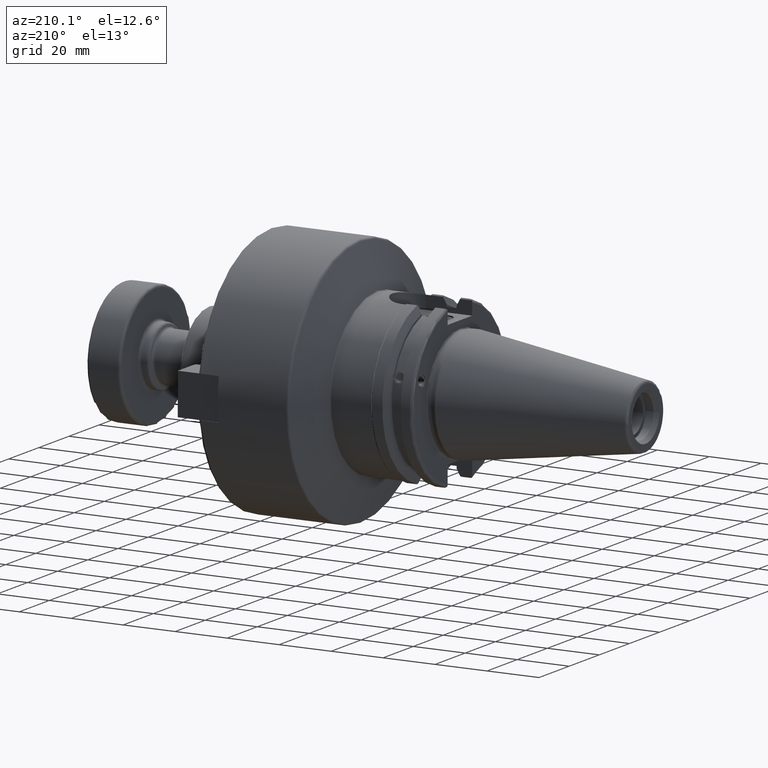
[diagram: clean part render]
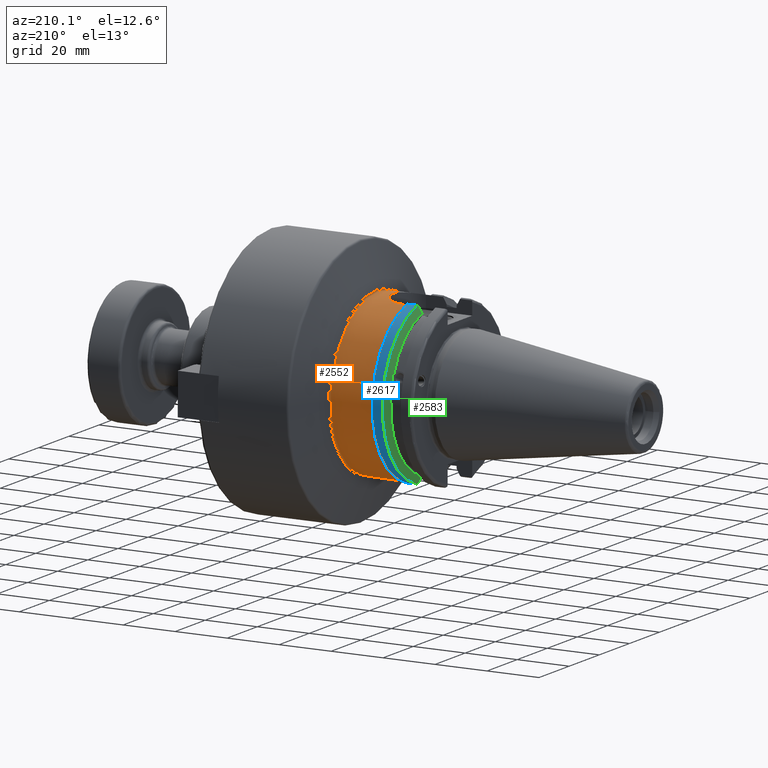
[diagram: same view with three faces highlighted in distinct colors, each labeled with its STEP entity id]
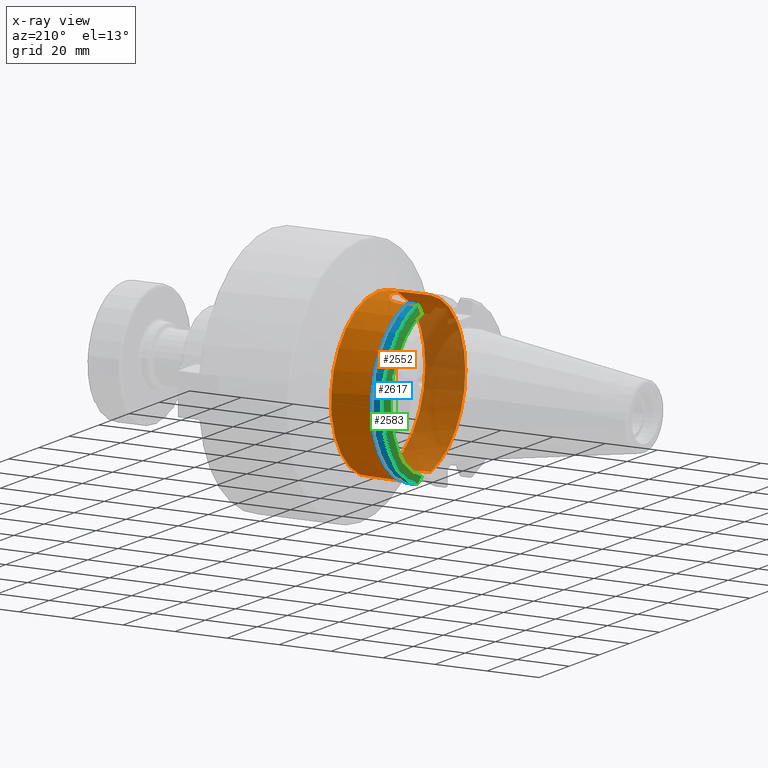
[diagram: x-ray of the same camera — body ghosted, the three highlighted faces saturated]
A machine part, auxiliary view with three faces highlighted in distinct colors.
The next image is the same camera in x-ray (body ghosted, the three faces saturated) — at least one of them is partly hidden behind the body in this view.
Their STEP definitions:

[orange] entity #2552 — the highlighted cylindrical surface (bore or boss wall) has radius 31.25 mm, axis along (1, 0, 0).
#121=CYLINDRICAL_SURFACE('',#2834,31.25);
#224=CIRCLE('',#2829,31.25);
#228=CIRCLE('',#2833,31.25);
#229=CIRCLE('',#2835,31.25);
#230=CIRCLE('',#2836,31.25);
#231=CIRCLE('',#2837,31.25);
#366=FACE_OUTER_BOUND('',#522,.T.);
#522=EDGE_LOOP('',(#1785,#1786,#1787,#1788,#1789,#1790,#1791,#1792,#1793,
#1794,#1795,#1796,#1797));
#699=LINE('',#4155,#862);
#700=LINE('',#4159,#863);
#701=LINE('',#4180,#864);
#702=LINE('',#4184,#865);
#703=LINE('',#4205,#866);
#862=VECTOR('',#3234,31.25);
#863=VECTOR('',#3237,10.);
#864=VECTOR('',#3238,10.);
#865=VECTOR('',#3241,10.);
#866=VECTOR('',#3242,10.);
#1009=B_SPLINE_CURVE_WITH_KNOTS('',3,(#4161,#4162,#4163,#4164,#4165,#4166,
#4167,#4168,#4169,#4170,#4171,#4172,#4173,#4174,#4175,#4176,#4177,#4178),
 .UNSPECIFIED.,.F.,.F.,(4,2,2,2,2,2,2,2,4),(-2.48058401696442,-2.1704846734033,
-1.86038532984218,-1.5503386691622,-1.24029200848221,-0.930245347802224,
-0.620198687122238,-0.310099343561118,0.),.UNSPECIFIED.);
#1010=B_SPLINE_CURVE_WITH_KNOTS('',3,(#4186,#4187,#4188,#4189,#4190,#4191,
#4192,#4193,#4194,#4195,#4196,#4197,#4198,#4199,#4200,#4201,#4202,#4203),
 .UNSPECIFIED.,.F.,.F.,(4,2,2,2,2,2,2,2,4),(-2.48058401696442,-2.1704846734033,
-1.86038532984219,-1.5503386691622,-1.24029200848221,-0.930245347802225,
-0.620198687122238,-0.310099343561118,0.),.UNSPECIFIED.);
#1079=VERTEX_POINT('',#4144);
#1080=VERTEX_POINT('',#4145);
#1083=VERTEX_POINT('',#4154);
#1084=VERTEX_POINT('',#4156);
#1085=VERTEX_POINT('',#4158);
#1086=VERTEX_POINT('',#4160);
#1087=VERTEX_POINT('',#4179);
#1088=VERTEX_POINT('',#4181);
#1089=VERTEX_POINT('',#4183);
#1090=VERTEX_POINT('',#4185);
#1091=VERTEX_POINT('',#4204);
#1352=EDGE_CURVE('',#1079,#1080,#224,.T.);
#1356=EDGE_CURVE('',#1080,#1079,#228,.T.);
#1357=EDGE_CURVE('',#1079,#1083,#699,.T.);
#1358=EDGE_CURVE('',#1084,#1083,#229,.T.);
#1359=EDGE_CURVE('',#1084,#1085,#700,.T.);
#1360=EDGE_CURVE('',#1085,#1086,#1009,.T.);
#1361=EDGE_CURVE('',#1086,#1087,#701,.T.);
#1362=EDGE_CURVE('',#1088,#1087,#230,.T.);
#1363=EDGE_CURVE('',#1088,#1089,#702,.T.);
#1364=EDGE_CURVE('',#1089,#1090,#1010,.T.);
#1365=EDGE_CURVE('',#1090,#1091,#703,.T.);
#1366=EDGE_CURVE('',#1083,#1091,#231,.T.);
#1785=ORIENTED_EDGE('',*,*,#1352,.F.);
#1786=ORIENTED_EDGE('',*,*,#1357,.T.);
#1787=ORIENTED_EDGE('',*,*,#1358,.F.);
#1788=ORIENTED_EDGE('',*,*,#1359,.T.);
#1789=ORIENTED_EDGE('',*,*,#1360,.T.);
#1790=ORIENTED_EDGE('',*,*,#1361,.T.);
#1791=ORIENTED_EDGE('',*,*,#1362,.F.);
#1792=ORIENTED_EDGE('',*,*,#1363,.T.);
#1793=ORIENTED_EDGE('',*,*,#1364,.T.);
#1794=ORIENTED_EDGE('',*,*,#1365,.T.);
#1795=ORIENTED_EDGE('',*,*,#1366,.F.);
#1796=ORIENTED_EDGE('',*,*,#1357,.F.);
#1797=ORIENTED_EDGE('',*,*,#1356,.F.);
#2552=ADVANCED_FACE('',(#366),#121,.T.);
#2829=AXIS2_PLACEMENT_3D('',#4146,#3222,#3223);
#2833=AXIS2_PLACEMENT_3D('',#4152,#3230,#3231);
#2834=AXIS2_PLACEMENT_3D('',#4153,#3232,#3233);
#2835=AXIS2_PLACEMENT_3D('',#4157,#3235,#3236);
#2836=AXIS2_PLACEMENT_3D('',#4182,#3239,#3240);
#2837=AXIS2_PLACEMENT_3D('',#4206,#3243,#3244);
#3222=DIRECTION('center_axis',(1.,0.,0.));
#3223=DIRECTION('ref_axis',(0.,-1.,1.83697019872103E-16));
#3230=DIRECTION('center_axis',(1.,0.,0.));
#3231=DIRECTION('ref_axis',(0.,-1.,1.83697019872103E-16));
#3232=DIRECTION('center_axis',(1.,0.,0.));
#3233=DIRECTION('ref_axis',(0.,1.,0.));
#3234=DIRECTION('',(-1.,0.,0.));
#3235=DIRECTION('center_axis',(-1.,0.,0.));
#3236=DIRECTION('ref_axis',(0.,-1.,4.9789962505148E-17));
#3237=DIRECTION('',(1.,0.,0.));
#3238=DIRECTION('',(-1.,0.,0.));
#3239=DIRECTION('center_axis',(-1.,0.,0.));
#3240=DIRECTION('ref_axis',(0.,1.,4.9789962505148E-17));
#3241=DIRECTION('',(1.,0.,0.));
#3242=DIRECTION('',(-1.,0.,0.));
#3243=DIRECTION('center_axis',(-1.,0.,0.));
#3244=DIRECTION('ref_axis',(0.,-1.,4.9789962505148E-17));
#4144=CARTESIAN_POINT('',(34.6498962308951,-31.25,-3.82702124733548E-15));
#4145=CARTESIAN_POINT('',(34.6498962308951,-3.82702124733548E-15,31.25));
#4146=CARTESIAN_POINT('Origin',(34.6498962308951,0.,0.));
#4152=CARTESIAN_POINT('Origin',(34.6498962308951,0.,0.));
#4153=CARTESIAN_POINT('Origin',(27.025,0.,0.));
#4154=CARTESIAN_POINT('',(19.2208203932499,-31.25,-3.82702124733548E-15));
#4155=CARTESIAN_POINT('',(27.025,-31.25,-3.82702124733548E-15));
#4156=CARTESIAN_POINT('',(19.2208203932499,-8.19,-30.157692219399));
#4157=CARTESIAN_POINT('Origin',(19.2208203932499,0.,0.));
#4158=CARTESIAN_POINT('',(20.985,-8.19,-30.157692219399));
#4159=CARTESIAN_POINT('',(27.025,-8.19,-30.157692219399));
#4160=CARTESIAN_POINT('',(20.985,8.19000000000002,-30.157692219399));
#4161=CARTESIAN_POINT('Ctrl Pts',(20.985,-8.19,-30.157692219399));
#4162=CARTESIAN_POINT('Ctrl Pts',(22.0186644785371,-8.19,-30.157692219399));
#4163=CARTESIAN_POINT('Ctrl Pts',(23.1177289031099,-7.98242969105082,-30.2163776881057));
#4164=CARTESIAN_POINT('Ctrl Pts',(25.1340267300331,-7.14515921681833,-30.4252421272864));
#4165=CARTESIAN_POINT('Ctrl Pts',(26.0517065657426,-6.51570251009308,-30.5720736251644));
#4166=CARTESIAN_POINT('Ctrl Pts',(27.5005794248904,-5.06682965094524,-30.8453094903202));
#4167=CARTESIAN_POINT('Ctrl Pts',(28.130131960371,-4.14909882987699,-30.9899080370957));
#4168=CARTESIAN_POINT('Ctrl Pts',(28.967472555723,-2.13261921574189,-31.193610827595));
#4169=CARTESIAN_POINT('Ctrl Pts',(29.175,-1.03348886893329,-31.25));
#4170=CARTESIAN_POINT('Ctrl Pts',(29.175,1.03348886893329,-31.25));
#4171=CARTESIAN_POINT('Ctrl Pts',(28.967472555723,2.13261921574189,-31.193610827595));
#4172=CARTESIAN_POINT('Ctrl Pts',(28.130131960371,4.14909882987699,-30.9899080370957));
#4173=CARTESIAN_POINT('Ctrl Pts',(27.5005794248904,5.06682965094524,-30.8453094903202));
#4174=CARTESIAN_POINT('Ctrl Pts',(26.0517065657426,6.51570251009308,-30.5720736251644));
#4175=CARTESIAN_POINT('Ctrl Pts',(25.1340267300331,7.14515921681833,-30.4252421272864));
#4176=CARTESIAN_POINT('Ctrl Pts',(23.1177289031099,7.98242969105082,-30.2163776881057));
#4177=CARTESIAN_POINT('Ctrl Pts',(22.0186644785371,8.19,-30.157692219399));
#4178=CARTESIAN_POINT('Ctrl Pts',(20.985,8.19,-30.157692219399));
#4179=CARTESIAN_POINT('',(19.2208203932499,8.19000000000002,-30.157692219399));
#4180=CARTESIAN_POINT('',(27.025,8.19000000000002,-30.157692219399));
#4181=CARTESIAN_POINT('',(19.2208203932499,8.19000000000001,30.157692219399));
#4182=CARTESIAN_POINT('Origin',(19.2208203932499,0.,0.));
#4183=CARTESIAN_POINT('',(20.985,8.19,30.157692219399));
#4184=CARTESIAN_POINT('',(27.025,8.19000000000001,30.157692219399));
#4185=CARTESIAN_POINT('',(20.985,-8.19000000000003,30.157692219399));
#4186=CARTESIAN_POINT('Ctrl Pts',(20.985,8.19000000000002,30.157692219399));
#4187=CARTESIAN_POINT('Ctrl Pts',(22.018664478537,8.19000000000002,30.157692219399));
#4188=CARTESIAN_POINT('Ctrl Pts',(23.1177289031099,7.98242969105083,30.2163776881057));
#4189=CARTESIAN_POINT('Ctrl Pts',(25.1340267300331,7.14515921681834,30.4252421272864));
#4190=CARTESIAN_POINT('Ctrl Pts',(26.0517065657425,6.5157025100931,30.5720736251644));
#4191=CARTESIAN_POINT('Ctrl Pts',(27.5005794248904,5.06682965094526,30.8453094903201));
#4192=CARTESIAN_POINT('Ctrl Pts',(28.130131960371,4.14909882987701,30.9899080370957));
#4193=CARTESIAN_POINT('Ctrl Pts',(28.9674725557229,2.13261921574191,31.193610827595));
#4194=CARTESIAN_POINT('Ctrl Pts',(29.175,1.03348886893331,31.25));
#4195=CARTESIAN_POINT('Ctrl Pts',(29.175,-1.03348886893327,31.25));
#4196=CARTESIAN_POINT('Ctrl Pts',(28.9674725557229,-2.13261921574187,31.193610827595));
#4197=CARTESIAN_POINT('Ctrl Pts',(28.130131960371,-4.14909882987697,30.9899080370957));
#4198=CARTESIAN_POINT('Ctrl Pts',(27.5005794248904,-5.06682965094522,30.8453094903202));
#4199=CARTESIAN_POINT('Ctrl Pts',(26.0517065657425,-6.51570251009306,30.5720736251644));
#4200=CARTESIAN_POINT('Ctrl Pts',(25.1340267300331,-7.14515921681831,30.4252421272864));
#4201=CARTESIAN_POINT('Ctrl Pts',(23.1177289031099,-7.9824296910508,30.2163776881057));
#4202=CARTESIAN_POINT('Ctrl Pts',(22.018664478537,-8.18999999999999,30.157692219399));
#4203=CARTESIAN_POINT('Ctrl Pts',(20.985,-8.18999999999999,30.157692219399));
#4204=CARTESIAN_POINT('',(19.2208203932499,-8.19000000000003,30.157692219399));
#4205=CARTESIAN_POINT('',(27.025,-8.19000000000003,30.157692219399));
#4206=CARTESIAN_POINT('Origin',(19.2208203932499,0.,0.));

[blue] entity #2617 — the highlighted cylindrical surface (partial cylindrical patch) has radius 31.75 mm, axis along (1, 0, 0).
#145=CYLINDRICAL_SURFACE('',#2977,31.75);
#261=CIRCLE('',#2915,31.75);
#278=CIRCLE('',#2949,31.75);
#431=FACE_OUTER_BOUND('',#598,.T.);
#598=EDGE_LOOP('',(#2160,#2161,#2162,#2163));
#773=LINE('',#4857,#936);
#774=LINE('',#4859,#937);
#936=VECTOR('',#3592,10.);
#937=VECTOR('',#3595,10.);
#1163=VERTEX_POINT('',#4573);
#1164=VERTEX_POINT('',#4577);
#1195=VERTEX_POINT('',#4699);
#1196=VERTEX_POINT('',#4710);
#1466=EDGE_CURVE('',#1164,#1163,#261,.T.);
#1513=EDGE_CURVE('',#1195,#1196,#278,.T.);
#1556=EDGE_CURVE('',#1164,#1195,#773,.T.);
#1557=EDGE_CURVE('',#1196,#1163,#774,.T.);
#2160=ORIENTED_EDGE('',*,*,#1513,.F.);
#2161=ORIENTED_EDGE('',*,*,#1556,.F.);
#2162=ORIENTED_EDGE('',*,*,#1466,.T.);
#2163=ORIENTED_EDGE('',*,*,#1557,.F.);
#2617=ADVANCED_FACE('',(#431),#145,.T.);
#2915=AXIS2_PLACEMENT_3D('',#4578,#3428,#3429);
#2949=AXIS2_PLACEMENT_3D('',#4711,#3518,#3519);
#2977=AXIS2_PLACEMENT_3D('',#4858,#3593,#3594);
#3428=DIRECTION('center_axis',(1.,0.,0.));
#3429=DIRECTION('ref_axis',(0.,0.,-1.));
#3518=DIRECTION('center_axis',(1.,0.,0.));
#3519=DIRECTION('ref_axis',(0.,1.,-6.12323399573677E-17));
#3592=DIRECTION('',(1.,0.,0.));
#3593=DIRECTION('center_axis',(1.,0.,0.));
#3594=DIRECTION('ref_axis',(0.,1.,0.));
#3595=DIRECTION('',(-1.,0.,0.));
#4573=CARTESIAN_POINT('',(14.6602667690756,8.67204822802685,30.5427254764662));
#4577=CARTESIAN_POINT('',(14.6602667690756,8.67204822802685,-30.5427254764662));
#4578=CARTESIAN_POINT('Origin',(14.6602667690756,0.,0.));
#4699=CARTESIAN_POINT('',(18.55,8.67204822802685,-30.5427254764662));
#4710=CARTESIAN_POINT('',(18.55,8.67204822802685,30.5427254764662));
#4711=CARTESIAN_POINT('Origin',(18.55,0.,0.));
#4857=CARTESIAN_POINT('',(16.8551333845378,8.67204822802685,-30.5427254764662));
#4858=CARTESIAN_POINT('Origin',(16.8551333845378,0.,0.));
#4859=CARTESIAN_POINT('',(16.8551333845378,8.67204822802685,30.5427254764662));

[green] entity #2583 — the highlighted conical surface has half-angle 60 deg.
#57=(
BOUNDED_CURVE()
B_SPLINE_CURVE(2,(#4570,#4571,#4572),.UNSPECIFIED.,.F.,.F.)
B_SPLINE_CURVE_WITH_KNOTS((3,3),(0.,0.276549142795285),.UNSPECIFIED.)
CURVE()
GEOMETRIC_REPRESENTATION_ITEM()
RATIONAL_B_SPLINE_CURVE((1.,1.00095203903482,1.00031614444868))
REPRESENTATION_ITEM('')
);
#58=(
BOUNDED_CURVE()
B_SPLINE_CURVE(2,(#4574,#4575,#4576),.UNSPECIFIED.,.F.,.F.)
B_SPLINE_CURVE_WITH_KNOTS((3,3),(0.,0.0639048713675832),.UNSPECIFIED.)
CURVE()
GEOMETRIC_REPRESENTATION_ITEM()
RATIONAL_B_SPLINE_CURVE((1.,1.0002844421829,1.00047644010585))
REPRESENTATION_ITEM('')
);
#59=(
BOUNDED_CURVE()
B_SPLINE_CURVE(2,(#4580,#4581,#4582),.UNSPECIFIED.,.F.,.F.)
B_SPLINE_CURVE_WITH_KNOTS((3,3),(0.329353533631253,0.393258405001026),
 .UNSPECIFIED.)
CURVE()
GEOMETRIC_REPRESENTATION_ITEM()
RATIONAL_B_SPLINE_CURVE((1.00047644010593,1.00028444218295,1.))
REPRESENTATION_ITEM('')
);
#60=(
BOUNDED_CURVE()
B_SPLINE_CURVE(2,(#4584,#4585,#4586),.UNSPECIFIED.,.F.,.F.)
B_SPLINE_CURVE_WITH_KNOTS((3,3),(0.0550586467398919,0.331607789535851),
 .UNSPECIFIED.)
CURVE()
GEOMETRIC_REPRESENTATION_ITEM()
RATIONAL_B_SPLINE_CURVE((1.00031614444973,1.00095203903796,1.))
REPRESENTATION_ITEM('')
);
#165=CONICAL_SURFACE('',#2913,30.3546886482472,1.0471975511966);
#260=CIRCLE('',#2914,28.9593772964944);
#261=CIRCLE('',#2915,31.75);
#262=CIRCLE('',#2916,28.9593772964944);
#397=FACE_OUTER_BOUND('',#559,.T.);
#559=EDGE_LOOP('',(#1968,#1969,#1970,#1971,#1972,#1973,#1974,#1975,#1976));
#1024=B_SPLINE_CURVE_WITH_KNOTS('',3,(#4495,#4496,#4497,#4498,#4499,#4500,
#4501,#4502),.UNSPECIFIED.,.F.,.F.,(4,2,2,4),(0.451995700189026,0.464547828547662,
0.504528771685167,0.544509714822672),.UNSPECIFIED.);
#1028=B_SPLINE_CURVE_WITH_KNOTS('',3,(#4557,#4558,#4559,#4560,#4561,#4562,
#4563,#4564),.UNSPECIFIED.,.F.,.F.,(4,2,2,4),(0.544509714822672,0.584490657960178,
0.624471601097683,0.637023729456321),.UNSPECIFIED.);
#1152=VERTEX_POINT('',#4492);
#1153=VERTEX_POINT('',#4494);
#1160=VERTEX_POINT('',#4555);
#1161=VERTEX_POINT('',#4567);
#1162=VERTEX_POINT('',#4569);
#1163=VERTEX_POINT('',#4573);
#1164=VERTEX_POINT('',#4577);
#1165=VERTEX_POINT('',#4579);
#1166=VERTEX_POINT('',#4583);
#1454=EDGE_CURVE('',#1153,#1152,#1024,.T.);
#1462=EDGE_CURVE('',#1152,#1160,#1028,.T.);
#1463=EDGE_CURVE('',#1160,#1161,#260,.T.);
#1464=EDGE_CURVE('',#1161,#1162,#57,.T.);
#1465=EDGE_CURVE('',#1163,#1162,#58,.T.);
#1466=EDGE_CURVE('',#1164,#1163,#261,.T.);
#1467=EDGE_CURVE('',#1165,#1164,#59,.T.);
#1468=EDGE_CURVE('',#1165,#1166,#60,.T.);
#1469=EDGE_CURVE('',#1166,#1153,#262,.T.);
#1968=ORIENTED_EDGE('',*,*,#1454,.T.);
#1969=ORIENTED_EDGE('',*,*,#1462,.T.);
#1970=ORIENTED_EDGE('',*,*,#1463,.T.);
#1971=ORIENTED_EDGE('',*,*,#1464,.T.);
#1972=ORIENTED_EDGE('',*,*,#1465,.F.);
#1973=ORIENTED_EDGE('',*,*,#1466,.F.);
#1974=ORIENTED_EDGE('',*,*,#1467,.F.);
#1975=ORIENTED_EDGE('',*,*,#1468,.T.);
#1976=ORIENTED_EDGE('',*,*,#1469,.T.);
#2583=ADVANCED_FACE('',(#397),#165,.T.);
#2913=AXIS2_PLACEMENT_3D('',#4566,#3424,#3425);
#2914=AXIS2_PLACEMENT_3D('',#4568,#3426,#3427);
#2915=AXIS2_PLACEMENT_3D('',#4578,#3428,#3429);
#2916=AXIS2_PLACEMENT_3D('',#4587,#3430,#3431);
#3424=DIRECTION('center_axis',(1.,0.,0.));
#3425=DIRECTION('ref_axis',(0.,1.,0.));
#3426=DIRECTION('center_axis',(1.,0.,0.));
#3427=DIRECTION('ref_axis',(0.,0.,-1.));
#3428=DIRECTION('center_axis',(1.,0.,0.));
#3429=DIRECTION('ref_axis',(0.,0.,-1.));
#3430=DIRECTION('center_axis',(1.,0.,0.));
#3431=DIRECTION('ref_axis',(0.,0.,-1.));
#4492=CARTESIAN_POINT('',(13.2341,27.51401829017,10.0142836826778));
#4494=CARTESIAN_POINT('',(13.0491,27.4956274489925,9.09043478536247));
#4495=CARTESIAN_POINT('Ctrl Pts',(13.0491,27.4956274489925,9.09043478536247));
#4496=CARTESIAN_POINT('Ctrl Pts',(13.0632204071996,27.5087667900418,9.12860597076219));
#4497=CARTESIAN_POINT('Ctrl Pts',(13.0766929817857,27.5206055003513,9.16696618806878));
#4498=CARTESIAN_POINT('Ctrl Pts',(13.130081441159,27.5642934663232,9.32791534028656));
#4499=CARTESIAN_POINT('Ctrl Pts',(13.1682197084175,27.5867382255984,9.46717946402648));
#4500=CARTESIAN_POINT('Ctrl Pts',(13.2204106446058,27.5847569104122,9.74771639360672));
#4501=CARTESIAN_POINT('Ctrl Pts',(13.2341,27.559599249844,9.8890510252165));
#4502=CARTESIAN_POINT('Ctrl Pts',(13.2341,27.51401829017,10.0142836826778));
#4555=CARTESIAN_POINT('',(13.0491,26.9060914640648,10.7101715919071));
#4557=CARTESIAN_POINT('Ctrl Pts',(13.2341,27.51401829017,10.0142836826778));
#4558=CARTESIAN_POINT('Ctrl Pts',(13.2341,27.4684373304961,10.139516340139));
#4559=CARTESIAN_POINT('Ctrl Pts',(13.2204106446058,27.3968610665578,10.2639559818059));
#4560=CARTESIAN_POINT('Ctrl Pts',(13.1682197084175,27.2180531796526,10.4801333026531));
#4561=CARTESIAN_POINT('Ctrl Pts',(13.130081441159,27.1113422433189,10.5723885976054));
#4562=CARTESIAN_POINT('Ctrl Pts',(13.0766929817857,26.9744191989197,10.6676007180674));
#4563=CARTESIAN_POINT('Ctrl Pts',(13.0632204071996,26.9406927482839,10.6893765730703));
#4564=CARTESIAN_POINT('Ctrl Pts',(13.0491,26.9060914640648,10.7101715919071));
#4566=CARTESIAN_POINT('Origin',(13.8546833845378,0.,0.));
#4567=CARTESIAN_POINT('',(13.0491,8.19,27.7771386827498));
#4568=CARTESIAN_POINT('Origin',(13.0491,0.,0.));
#4569=CARTESIAN_POINT('',(14.3815146964874,8.19,30.1755016258903));
#4570=CARTESIAN_POINT('Ctrl Pts',(13.0491,8.19,27.7771386827498));
#4571=CARTESIAN_POINT('Ctrl Pts',(13.6877364384881,8.19,28.930368953992));
#4572=CARTESIAN_POINT('Ctrl Pts',(14.3815146964874,8.19,30.1755016258903));
#4573=CARTESIAN_POINT('',(14.6602667690756,8.67204822802685,30.5427254764662));
#4574=CARTESIAN_POINT('Ctrl Pts',(14.6602667690756,8.67204822802687,30.5427254764662));
#4575=CARTESIAN_POINT('Ctrl Pts',(14.5192085187837,8.42917748262644,30.357706789263));
#4576=CARTESIAN_POINT('Ctrl Pts',(14.3815146964874,8.19,30.1755016258903));
#4577=CARTESIAN_POINT('',(14.6602667690756,8.67204822802685,-30.5427254764662));
#4578=CARTESIAN_POINT('Origin',(14.6602667690756,0.,0.));
#4579=CARTESIAN_POINT('',(14.3815146964874,8.18999999999999,-30.1755016258903));
#4580=CARTESIAN_POINT('Ctrl Pts',(14.3815146964874,8.18999999999999,-30.1755016258903));
#4581=CARTESIAN_POINT('Ctrl Pts',(14.5192085187884,8.4291774826346,-30.3577067892692));
#4582=CARTESIAN_POINT('Ctrl Pts',(14.6602667690756,8.67204822802686,-30.5427254764662));
#4583=CARTESIAN_POINT('',(13.0491,8.19,-27.7771386827498));
#4584=CARTESIAN_POINT('Ctrl Pts',(14.3815146964874,8.18999999999999,-30.1755016258903));
#4585=CARTESIAN_POINT('Ctrl Pts',(13.6877364384816,8.18999999999999,-28.9303689539805));
#4586=CARTESIAN_POINT('Ctrl Pts',(13.0491,8.19,-27.7771386827498));
#4587=CARTESIAN_POINT('Origin',(13.0491,0.,0.));